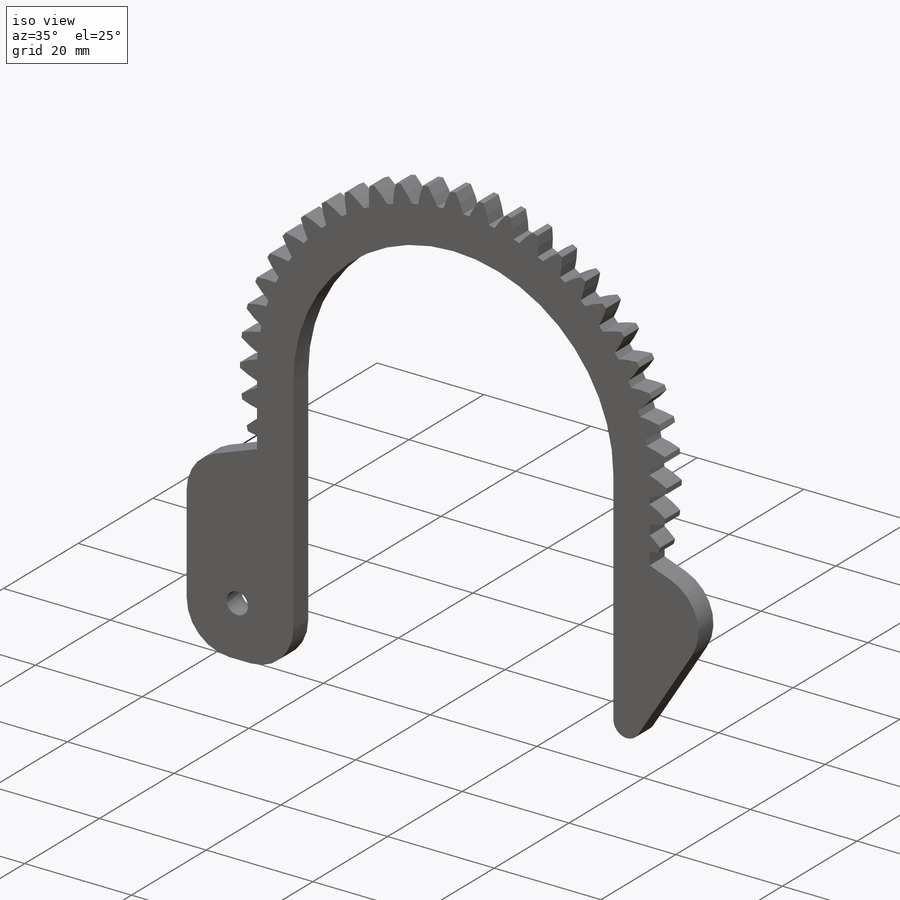
[diagram: iso view]
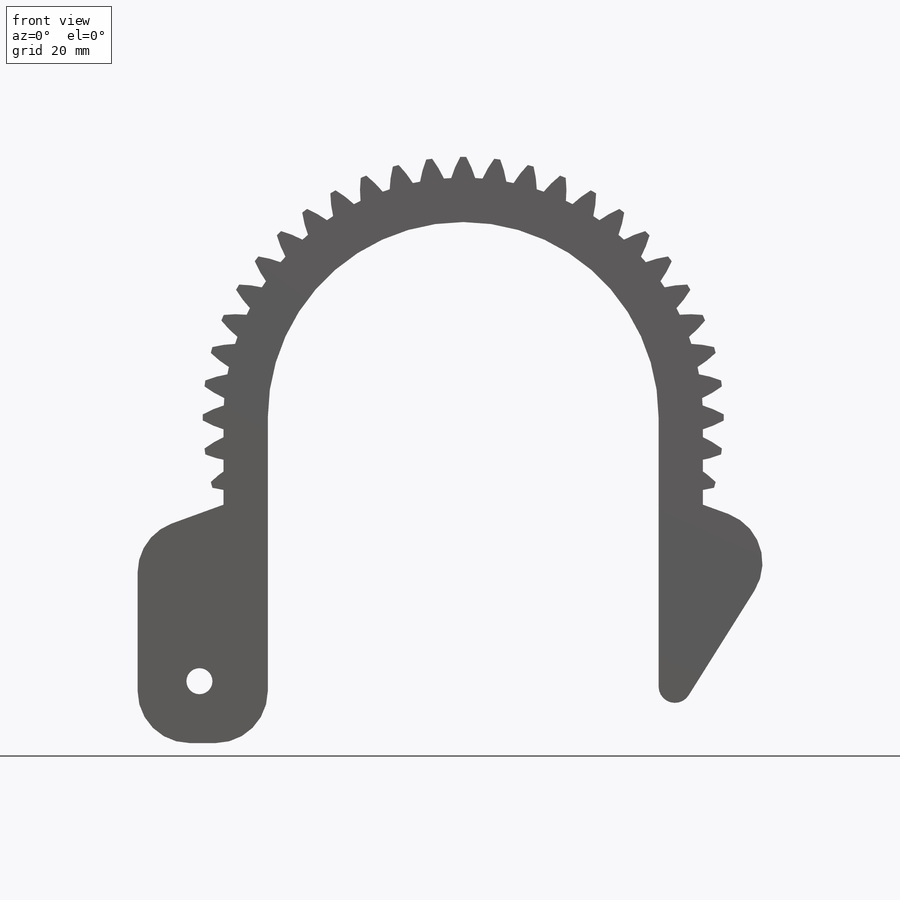
[diagram: front view]
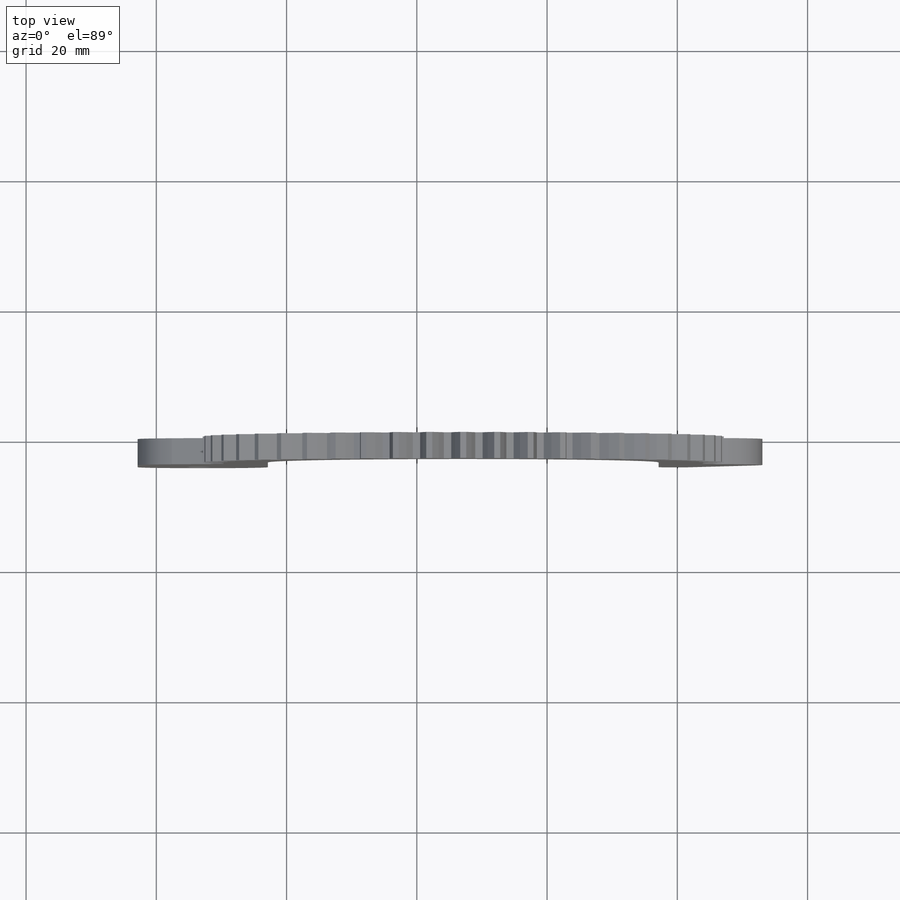
[diagram: top view]
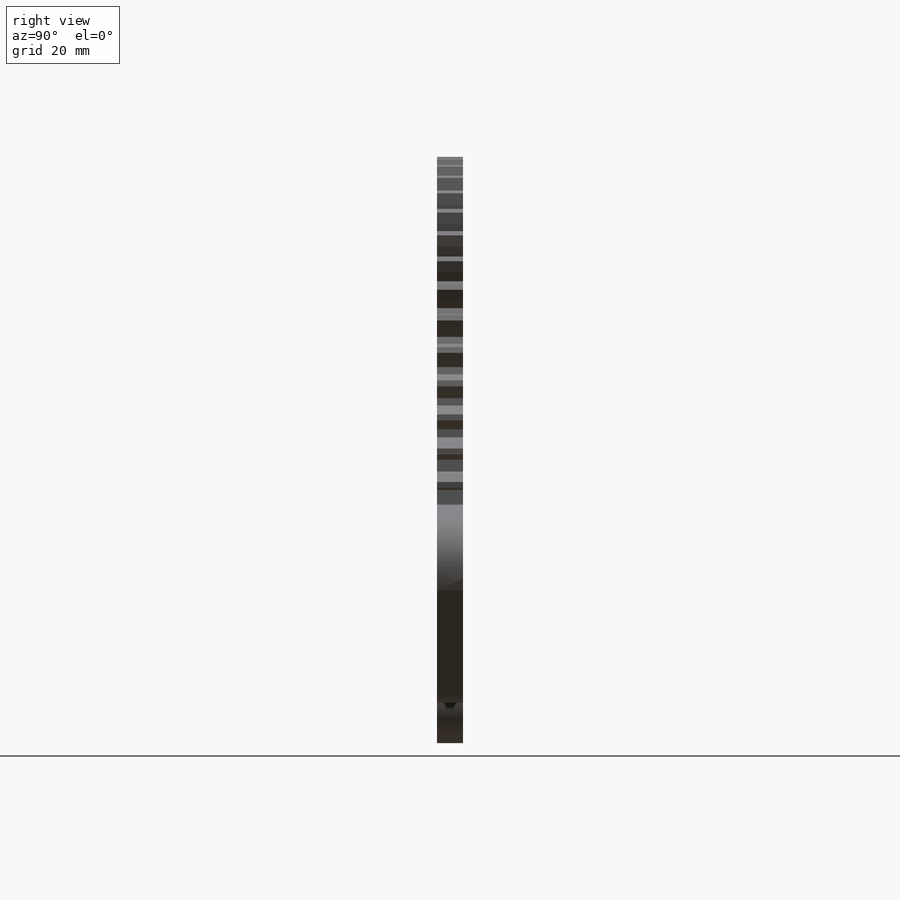
[diagram: right view]
SOLIDWORKS PART (.sldprt)
format: sldprt  version: not decoded by parser v0  size: 506,880 bytes
history: native  units: mm
features: sketch x5, cut_extrude x3, extrude x2, fillet x2, material x1 (+11 scaffold rows collapsed)
feature tree (24):
  scaffold x11  (default folders/planes/origin — collapsed)
  material  "Delrin 2700 NC010, Low Viscosity Acetal Copolymer (SS)"
  sketch  "Sketch1"  dims[D1=10.0mm]
  sketch  "Sketch2"  dims[c1.D1=100.0mm c1.D2=100.0mm c1.D3=50.0mm c2.D3=20.0deg c2.D4=~79.999994mm c3.D4=36.0deg c3.D5=36.8mm c3.D1=100.0mm c3.D2=50.0mm c4.D4=20.0mm]
  sketch  "Sketch3"  dims[D1=4.0mm D2=81.0mm]
  sketch  "Sketch4"  dims[D1=60.0mm]
  extrude  "Boss-Extrude1"  Depth=4mm
  extrude  "Boss-Extrude2"  Depth=4mm
  cut_extrude  "Cut-Extrude1"  [1 undecoded]
  cut_extrude  "Cut-Extrude2"  [1 undecoded]
  sketch  "Sketch5"  dims[D1=60.0mm]
  cut_extrude  "Cut-Extrude3"  [1 undecoded]
  fillet  "Fillet1"  Radius=8mm
  fillet  "Fillet2"  Radius=2.5mm
decode coverage: 9 of 12 modeling features carry decoded parameters
note: ~ marks probable driven/reference dimensions
note: 3 parameter values undecoded
summary: no parameter record found for 3 features
note: suppression state not decoded; provenance and decode notes live in map.json
